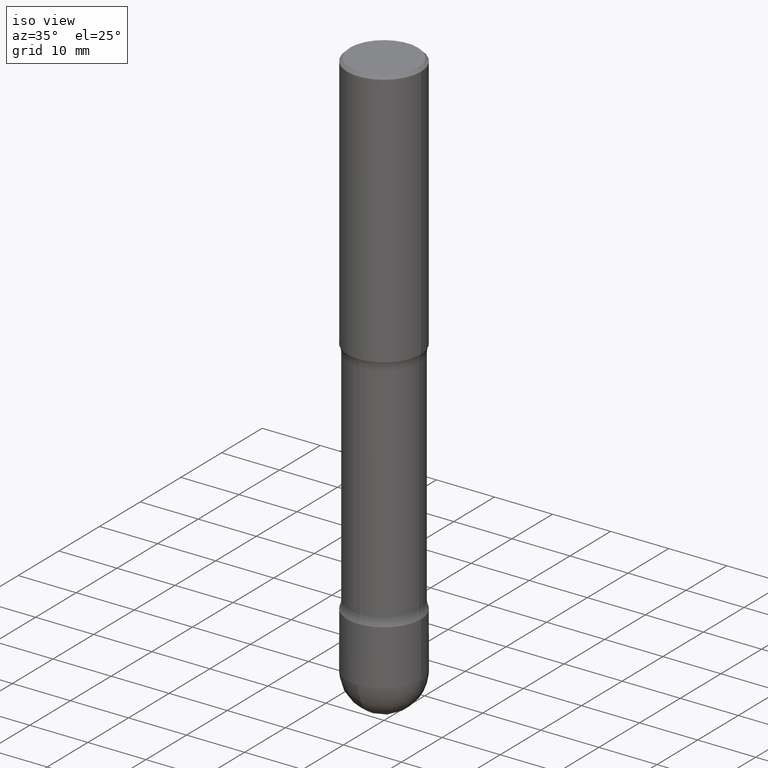
[diagram: clean part render]
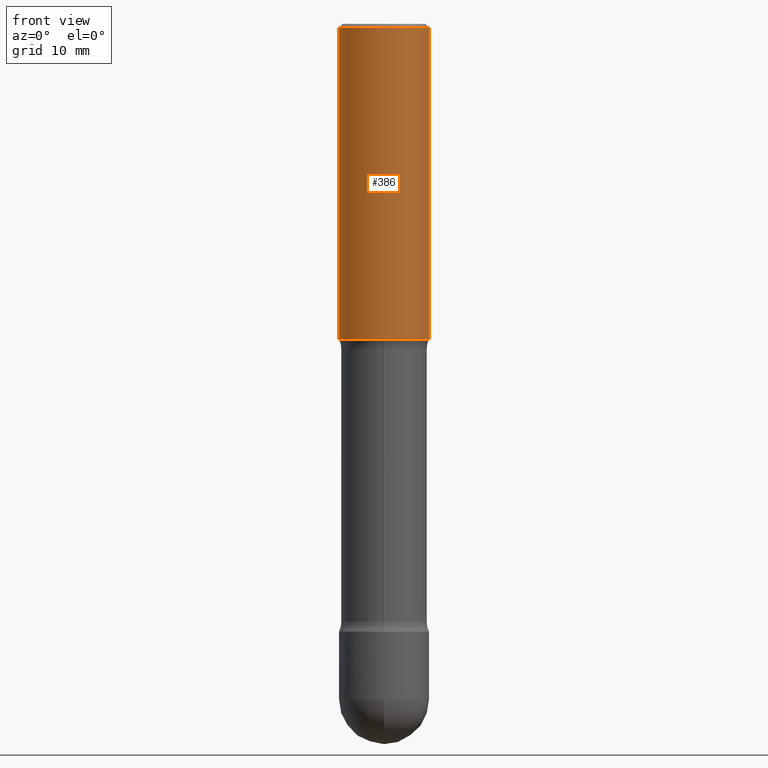
[diagram: tour spotlight — one face highlighted and labeled with its STEP entity id]
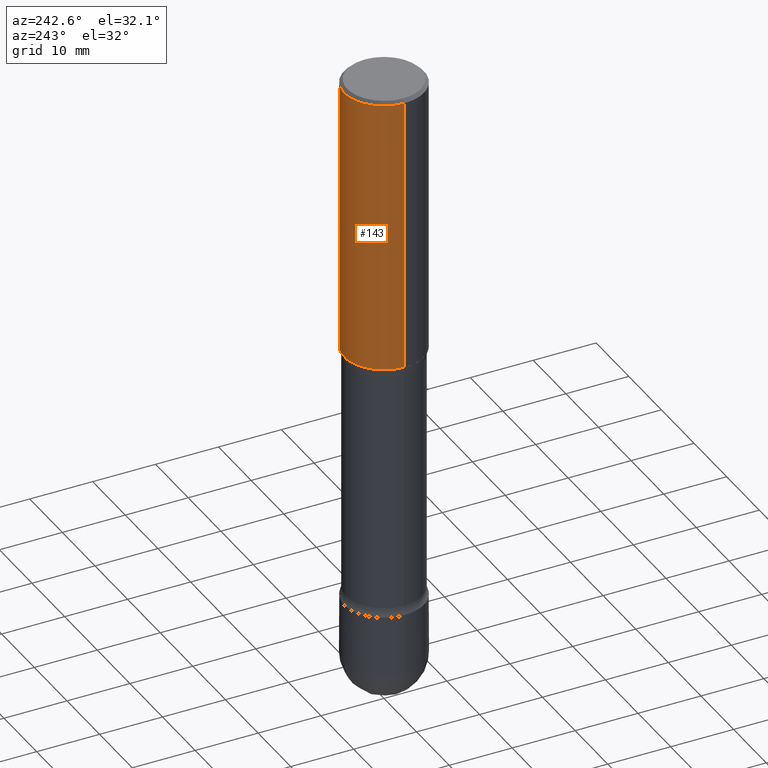
[diagram: tour spotlight — one face highlighted and labeled with its STEP entity id]
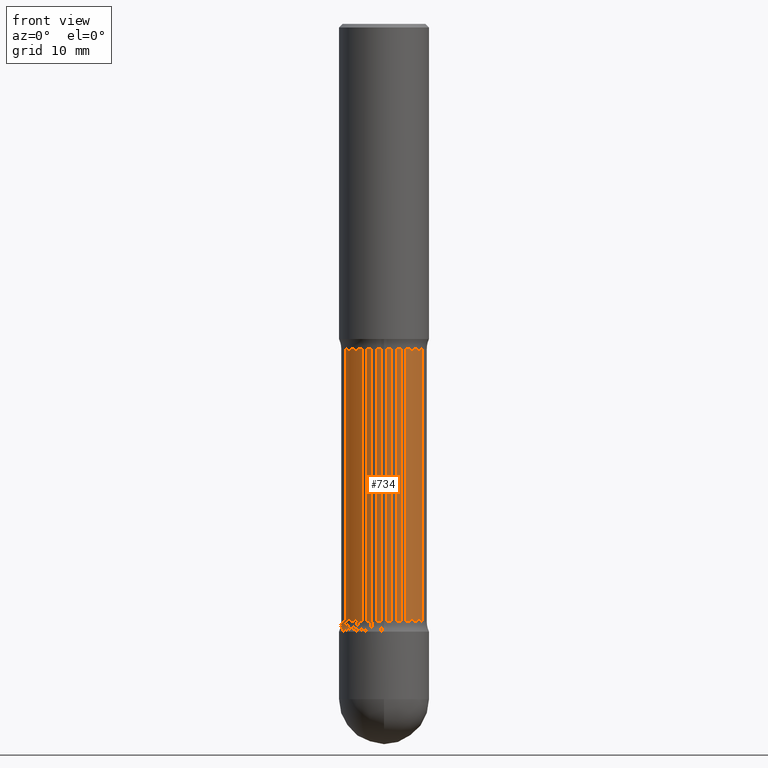
[diagram: tour spotlight — one face highlighted and labeled with its STEP entity id]
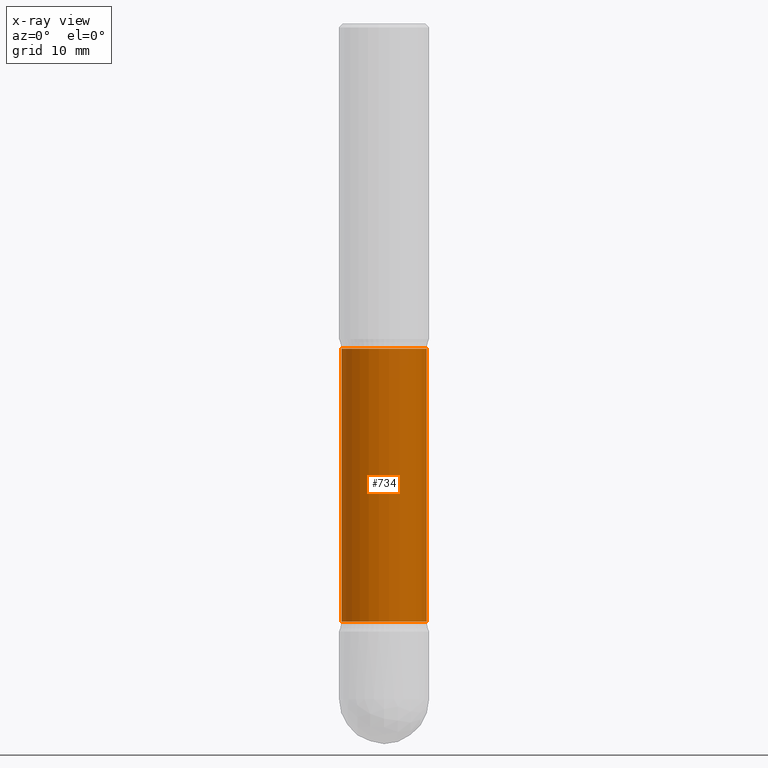
[diagram: x-ray of the same camera — body ghosted, this tour face saturated]
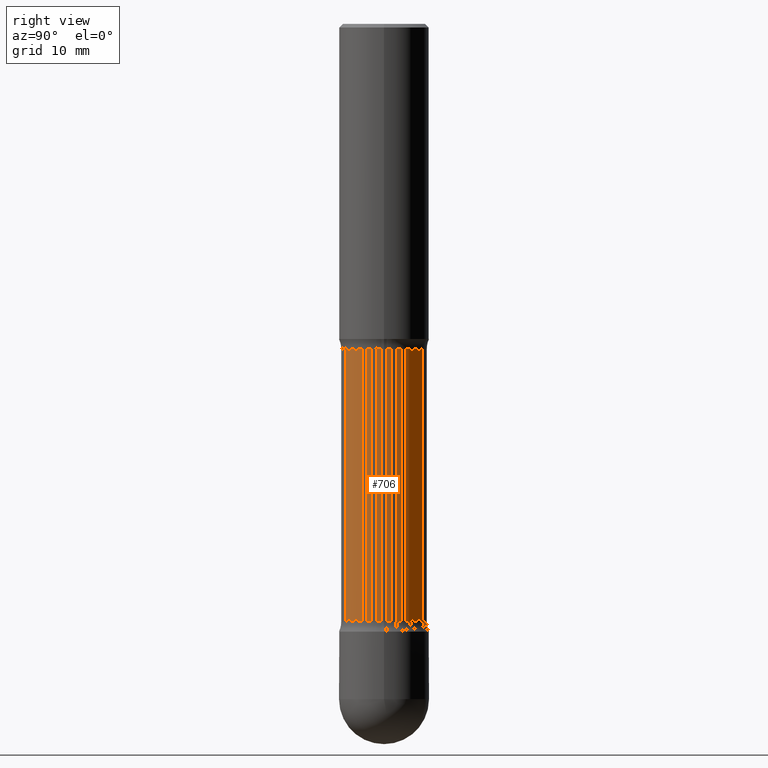
[diagram: tour spotlight — one face highlighted and labeled with its STEP entity id]
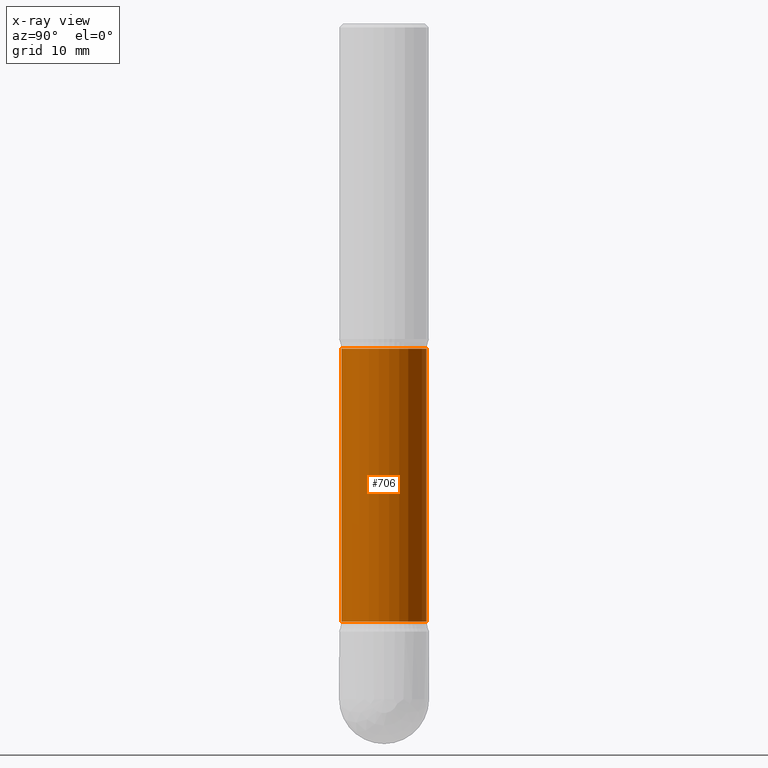
[diagram: x-ray of the same camera — body ghosted, this tour face saturated]
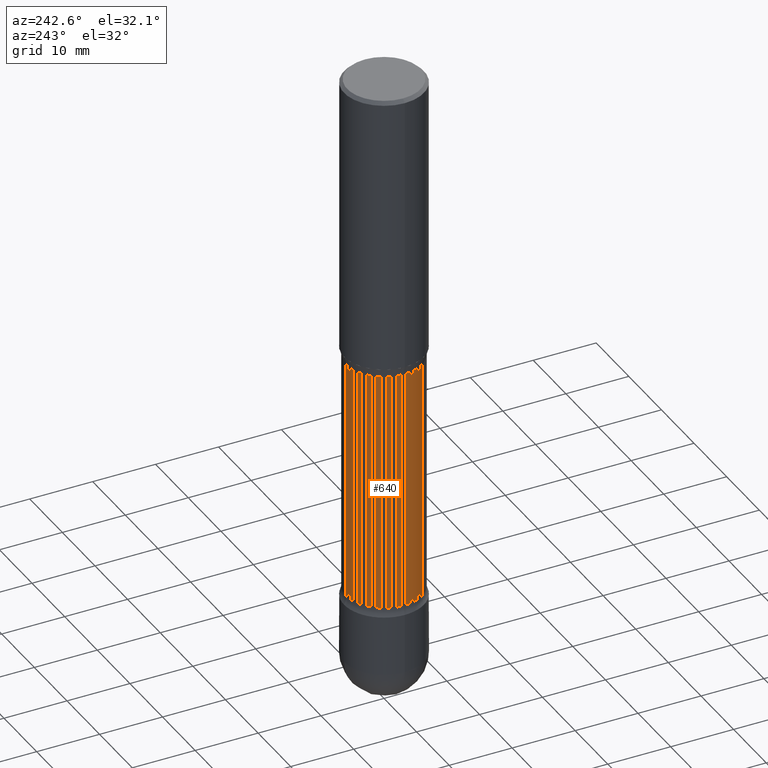
[diagram: tour spotlight — one face highlighted and labeled with its STEP entity id]
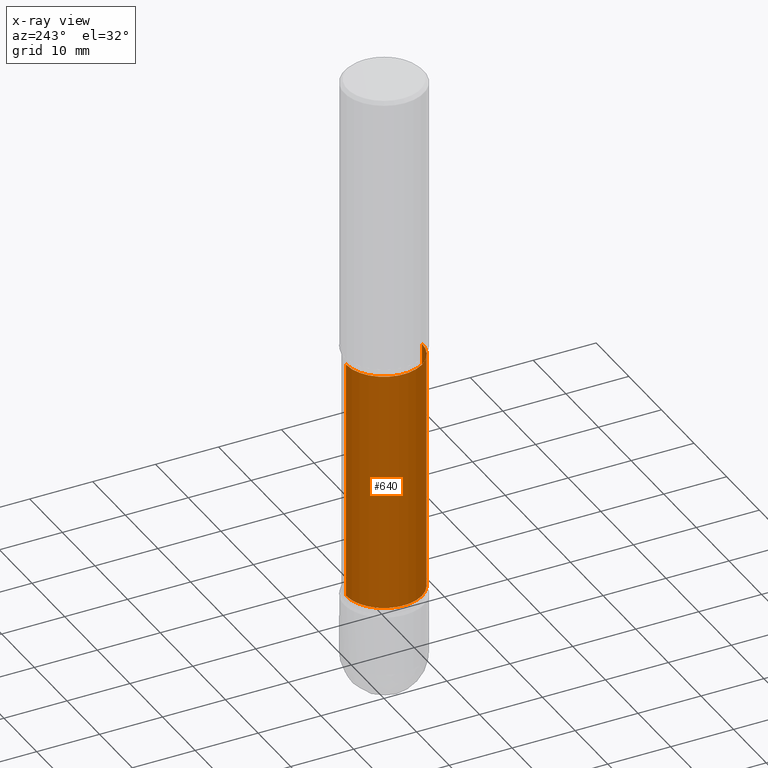
[diagram: x-ray of the same camera — body ghosted, this tour face saturated]
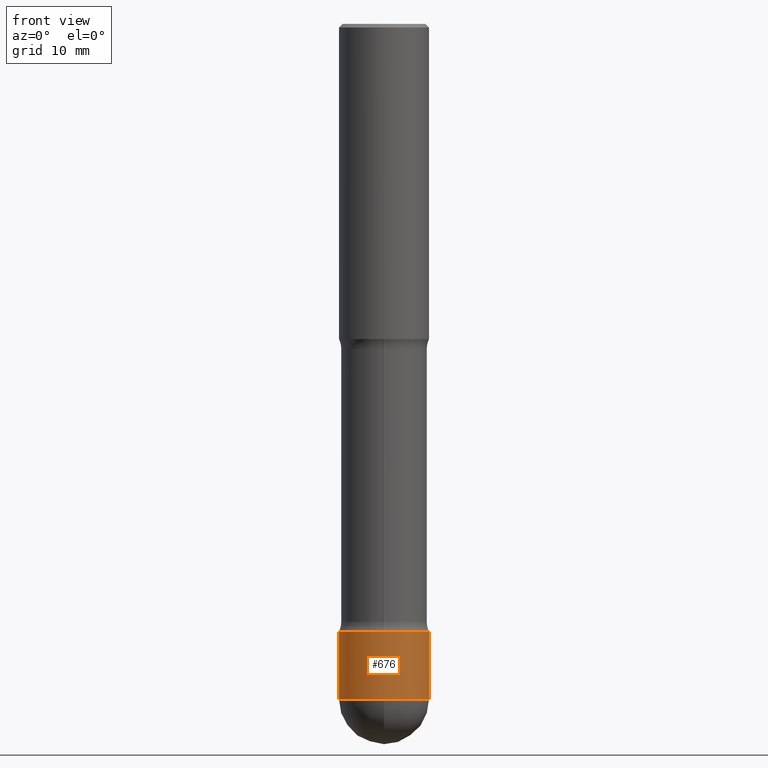
[diagram: tour spotlight — one face highlighted and labeled with its STEP entity id]
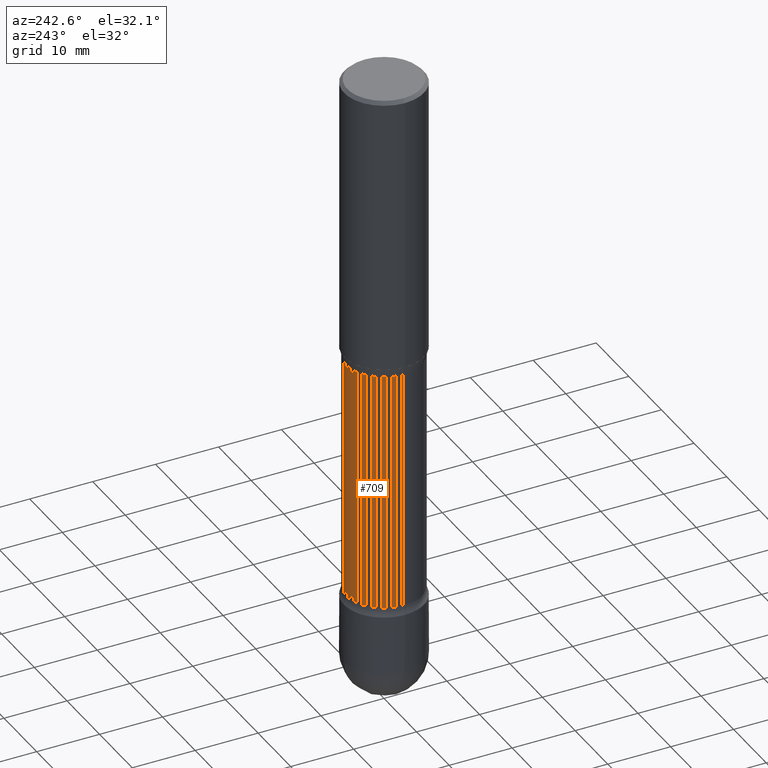
[diagram: tour spotlight — one face highlighted and labeled with its STEP entity id]
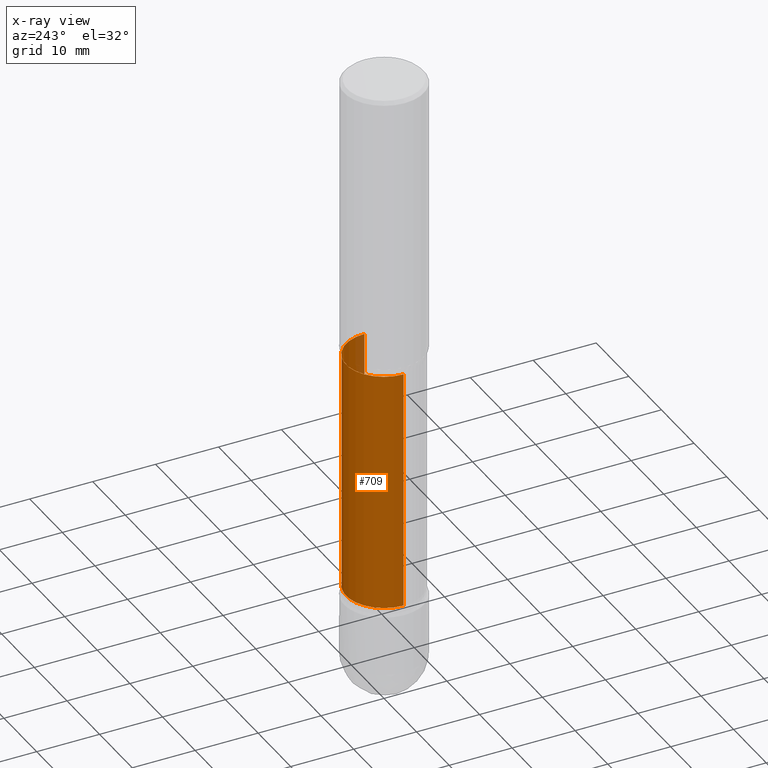
[diagram: x-ray of the same camera — body ghosted, this tour face saturated]
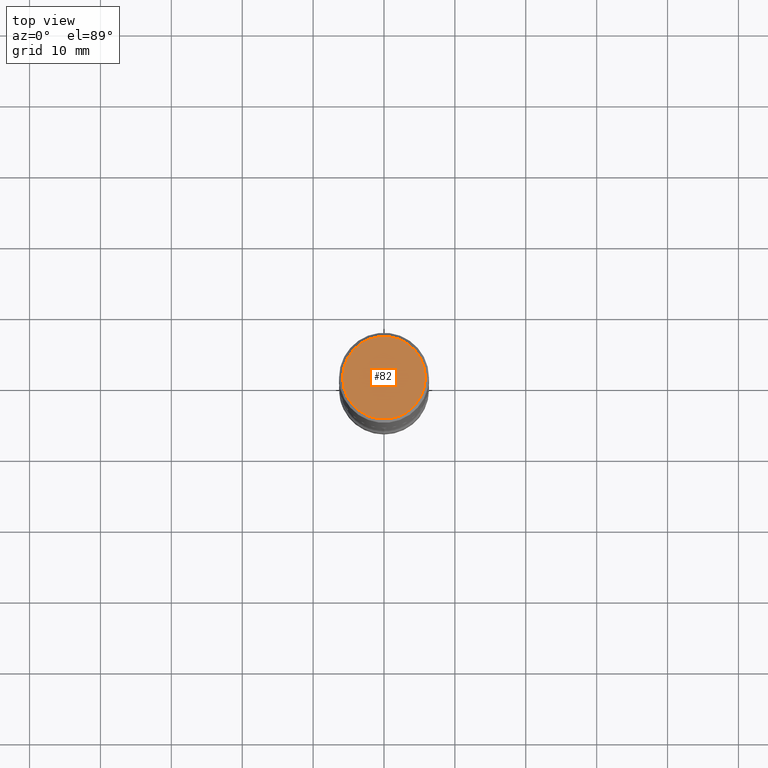
[diagram: tour spotlight — one face highlighted and labeled with its STEP entity id]
A machine part: a face-by-face anatomy tour. The part has 27 B-rep faces; the first image is the clean iso view, then the 8 largest visible faces are spotlighted one at a time (largest first), each with its STEP entity span.

Face 1 — front view, entity #386. In plain terms, the highlighted cylindrical surface (partial cylindrical patch) has radius 6.35 mm, axis along (-0, 0, 1).
Definition (entity closure, byte-faithful):
#74 = EDGE_LOOP ( 'NONE', ( #476, #654, #793, #844 ) ) ;
#84 = EDGE_CURVE ( 'NONE', #464, #369, #563, .T. ) ;
#92 = DIRECTION ( 'NONE',  ( -2.445468806185136597E-29, 3.491481338843145583E-15, 1.000000000000000000 ) ) ;
#114 = AXIS2_PLACEMENT_3D ( 'NONE', #317, #594, #251 ) ;
#115 = LINE ( 'NONE', #452, #261 ) ;
#136 = FACE_OUTER_BOUND ( 'NONE', #74, .T. ) ;
#145 = DIRECTION ( 'NONE',  ( 1.000000000000000000, -6.982962677686267499E-15, 0.000000000000000000 ) ) ;
#176 = VECTOR ( 'NONE', #478, 39.37007874015748143 ) ;
#196 = CARTESIAN_POINT ( 'NONE',  ( 0.2499999999999996114, -1.784954126219743428E-15, -0.02000000000000005246 ) ) ;
#202 = CIRCLE ( 'NONE', #114, 0.2500000000000000000 ) ;
#206 = DIRECTION ( 'NONE',  ( -2.445468806185136597E-29, 3.491481338843145583E-15, 1.000000000000000000 ) ) ;
#251 = DIRECTION ( 'NONE',  ( 1.000000000000000000, -6.982962677686266711E-15, 0.000000000000000000 ) ) ;
#261 = VECTOR ( 'NONE', #655, 39.37007874015748143 ) ;
#281 = CARTESIAN_POINT ( 'NONE',  ( 0.000000000000000000, 0.000000000000000000, 0.000000000000000000 ) ) ;
#303 = CARTESIAN_POINT ( 'NONE',  ( -0.2499999999999996114, 1.675911042644701013E-15, -0.02000000000000005246 ) ) ;
#317 = CARTESIAN_POINT ( 'NONE',  ( 4.279570410823988484E-29, -6.110092342975504671E-15, -1.750000000000000000 ) ) ;
#340 = EDGE_CURVE ( 'NONE', #511, #464, #343, .T. ) ;
#341 = CARTESIAN_POINT ( 'NONE',  ( 4.890937612370285420E-31, -6.982962677686308865E-17, -0.02000000000000005246 ) ) ;
#343 = LINE ( 'NONE', #542, #176 ) ;
#369 = VERTEX_POINT ( 'NONE', #196 ) ;
#386 = ADVANCED_FACE ( 'NONE', ( #136 ), #748, .T. ) ;
#452 = CARTESIAN_POINT ( 'NONE',  ( 0.2499999999999998057, -1.745740669421565297E-15, 1.219044193948982967E-29 ) ) ;
#464 = VERTEX_POINT ( 'NONE', #303 ) ;
#476 = ORIENTED_EDGE ( 'NONE', *, *, #340, .F. ) ;
#478 = DIRECTION ( 'NONE',  ( -2.445468806185136877E-29, 3.491481338843145188E-15, 1.000000000000000000 ) ) ;
#511 = VERTEX_POINT ( 'NONE', #720 ) ;
#542 = CARTESIAN_POINT ( 'NONE',  ( -0.2499999999999998057, 1.776356839400249084E-15, -1.229733772563725465E-29 ) ) ;
#563 = CIRCLE ( 'NONE', #786, 0.2499999999999996114 ) ;
#569 = VERTEX_POINT ( 'NONE', #802 ) ;
#594 = DIRECTION ( 'NONE',  ( -2.445468806185136597E-29, 3.491481338843145583E-15, 1.000000000000000000 ) ) ;
#612 = DIRECTION ( 'NONE',  ( 1.000000000000000000, -6.982962677686266711E-15, 4.876176775795935793E-29 ) ) ;
#654 = ORIENTED_EDGE ( 'NONE', *, *, #795, .T. ) ;
#655 = DIRECTION ( 'NONE',  ( -2.445468806185136877E-29, 3.491481338843145188E-15, 1.000000000000000000 ) ) ;
#720 = CARTESIAN_POINT ( 'NONE',  ( -0.2500000000000000555, -1.313604145475930562E-15, -1.750000000000000000 ) ) ;
#739 = AXIS2_PLACEMENT_3D ( 'NONE', #281, #206, #612 ) ;
#748 = CYLINDRICAL_SURFACE ( 'NONE', #739, 0.2499999999999998057 ) ;
#786 = AXIS2_PLACEMENT_3D ( 'NONE', #341, #92, #145 ) ;
#793 = ORIENTED_EDGE ( 'NONE', *, *, #803, .T. ) ;
#795 = EDGE_CURVE ( 'NONE', #511, #569, #202, .T. ) ;
#802 = CARTESIAN_POINT ( 'NONE',  ( 0.2500000000000000000, -7.855833012397070560E-15, -1.750000000000000000 ) ) ;
#803 = EDGE_CURVE ( 'NONE', #569, #369, #115, .T. ) ;
#844 = ORIENTED_EDGE ( 'NONE', *, *, #84, .F. ) ;

Face 2 — auxiliary view, entity #143. In plain terms, the highlighted cylindrical surface (partial cylindrical patch) has radius 6.35 mm, axis along (-0, 0, 1).
Definition (entity closure, byte-faithful):
#77 = DIRECTION ( 'NONE',  ( 1.000000000000000000, -6.982962677686266711E-15, 0.000000000000000000 ) ) ;
#86 = CIRCLE ( 'NONE', #231, 0.2499999999999996114 ) ;
#102 = AXIS2_PLACEMENT_3D ( 'NONE', #277, #687, #549 ) ;
#115 = LINE ( 'NONE', #452, #261 ) ;
#143 = ADVANCED_FACE ( 'NONE', ( #543 ), #424, .T. ) ;
#166 = ORIENTED_EDGE ( 'NONE', *, *, #340, .T. ) ;
#176 = VECTOR ( 'NONE', #478, 39.37007874015748143 ) ;
#196 = CARTESIAN_POINT ( 'NONE',  ( 0.2499999999999996114, -1.784954126219743428E-15, -0.02000000000000005246 ) ) ;
#214 = CIRCLE ( 'NONE', #587, 0.2500000000000000000 ) ;
#231 = AXIS2_PLACEMENT_3D ( 'NONE', #298, #492, #570 ) ;
#242 = EDGE_LOOP ( 'NONE', ( #331, #166, #664, #815 ) ) ;
#261 = VECTOR ( 'NONE', #655, 39.37007874015748143 ) ;
#265 = CARTESIAN_POINT ( 'NONE',  ( 4.279570410823988484E-29, -6.110092342975504671E-15, -1.750000000000000000 ) ) ;
#277 = CARTESIAN_POINT ( 'NONE',  ( 0.000000000000000000, 0.000000000000000000, 0.000000000000000000 ) ) ;
#298 = CARTESIAN_POINT ( 'NONE',  ( 4.890937612370285420E-31, -6.982962677686308865E-17, -0.02000000000000005246 ) ) ;
#303 = CARTESIAN_POINT ( 'NONE',  ( -0.2499999999999996114, 1.675911042644701013E-15, -0.02000000000000005246 ) ) ;
#331 = ORIENTED_EDGE ( 'NONE', *, *, #395, .T. ) ;
#340 = EDGE_CURVE ( 'NONE', #511, #464, #343, .T. ) ;
#343 = LINE ( 'NONE', #542, #176 ) ;
#369 = VERTEX_POINT ( 'NONE', #196 ) ;
#395 = EDGE_CURVE ( 'NONE', #569, #511, #214, .T. ) ;
#424 = CYLINDRICAL_SURFACE ( 'NONE', #102, 0.2499999999999998057 ) ;
#452 = CARTESIAN_POINT ( 'NONE',  ( 0.2499999999999998057, -1.745740669421565297E-15, 1.219044193948982967E-29 ) ) ;
#464 = VERTEX_POINT ( 'NONE', #303 ) ;
#470 = DIRECTION ( 'NONE',  ( -2.445468806185136597E-29, 3.491481338843145583E-15, 1.000000000000000000 ) ) ;
#478 = DIRECTION ( 'NONE',  ( -2.445468806185136877E-29, 3.491481338843145188E-15, 1.000000000000000000 ) ) ;
#492 = DIRECTION ( 'NONE',  ( -2.445468806185136597E-29, 3.491481338843145583E-15, 1.000000000000000000 ) ) ;
#511 = VERTEX_POINT ( 'NONE', #720 ) ;
#542 = CARTESIAN_POINT ( 'NONE',  ( -0.2499999999999998057, 1.776356839400249084E-15, -1.229733772563725465E-29 ) ) ;
#543 = FACE_OUTER_BOUND ( 'NONE', #242, .T. ) ;
#549 = DIRECTION ( 'NONE',  ( 1.000000000000000000, -6.982962677686266711E-15, 4.876176775795935793E-29 ) ) ;
#569 = VERTEX_POINT ( 'NONE', #802 ) ;
#570 = DIRECTION ( 'NONE',  ( 1.000000000000000000, -6.982962677686267499E-15, 0.000000000000000000 ) ) ;
#587 = AXIS2_PLACEMENT_3D ( 'NONE', #265, #470, #77 ) ;
#655 = DIRECTION ( 'NONE',  ( -2.445468806185136877E-29, 3.491481338843145188E-15, 1.000000000000000000 ) ) ;
#664 = ORIENTED_EDGE ( 'NONE', *, *, #717, .F. ) ;
#687 = DIRECTION ( 'NONE',  ( -2.445468806185136597E-29, 3.491481338843145583E-15, 1.000000000000000000 ) ) ;
#717 = EDGE_CURVE ( 'NONE', #369, #464, #86, .T. ) ;
#720 = CARTESIAN_POINT ( 'NONE',  ( -0.2500000000000000555, -1.313604145475930562E-15, -1.750000000000000000 ) ) ;
#802 = CARTESIAN_POINT ( 'NONE',  ( 0.2500000000000000000, -7.855833012397070560E-15, -1.750000000000000000 ) ) ;
#803 = EDGE_CURVE ( 'NONE', #569, #369, #115, .T. ) ;
#815 = ORIENTED_EDGE ( 'NONE', *, *, #803, .F. ) ;

Face 3 — front view, entity #734. An x-ray twin of the same camera follows (body ghosted, this face saturated) — the face is partly hidden behind the body. In plain terms, the highlighted cylindrical surface (partial cylindrical patch) has radius 6.0325 mm, axis along (-0, 0, 1).
Definition (entity closure, byte-faithful):
#1 = ORIENTED_EDGE ( 'NONE', *, *, #7, .T. ) ;
#3 = VECTOR ( 'NONE', #408, 39.37007874015748143 ) ;
#7 = EDGE_CURVE ( 'NONE', #607, #129, #505, .T. ) ;
#47 = CIRCLE ( 'NONE', #73, 0.2374999999999998501 ) ;
#49 = EDGE_LOOP ( 'NONE', ( #439, #1, #529, #593 ) ) ;
#64 = VERTEX_POINT ( 'NONE', #288 ) ;
#73 = AXIS2_PLACEMENT_3D ( 'NONE', #560, #163, #431 ) ;
#129 = VERTEX_POINT ( 'NONE', #621 ) ;
#163 = DIRECTION ( 'NONE',  ( -2.445468806185136597E-29, 3.491481338843145583E-15, 1.000000000000000000 ) ) ;
#172 = AXIS2_PLACEMENT_3D ( 'NONE', #320, #524, #197 ) ;
#197 = DIRECTION ( 'NONE',  ( 1.000000000000000000, -6.982962677686262766E-15, 0.000000000000000000 ) ) ;
#210 = CARTESIAN_POINT ( 'NONE',  ( 0.2375000000000000167, -7.768545978925992226E-15, -1.750000000000000000 ) ) ;
#284 = CARTESIAN_POINT ( 'NONE',  ( 4.279570410823988484E-29, -6.110092342975504671E-15, -1.750000000000000000 ) ) ;
#288 = CARTESIAN_POINT ( 'NONE',  ( -0.2374999999999998501, -4.473263264055732552E-15, -1.804486236794258680 ) ) ;
#290 = FACE_OUTER_BOUND ( 'NONE', #49, .T. ) ;
#320 = CARTESIAN_POINT ( 'NONE',  ( 8.120212828428064270E-29, -1.159351183960467950E-14, -3.320513763205743096 ) ) ;
#333 = LINE ( 'NONE', #472, #539 ) ;
#384 = EDGE_CURVE ( 'NONE', #129, #507, #817, .T. ) ;
#408 = DIRECTION ( 'NONE',  ( -2.445468806185136877E-29, 3.491481338843145188E-15, 1.000000000000000000 ) ) ;
#431 = DIRECTION ( 'NONE',  ( 1.000000000000000000, -6.982962677686265133E-15, 0.000000000000000000 ) ) ;
#439 = ORIENTED_EDGE ( 'NONE', *, *, #613, .F. ) ;
#472 = CARTESIAN_POINT ( 'NONE',  ( -0.2375000000000000167, -4.422553345545266414E-15, -1.750000000000000000 ) ) ;
#505 = CIRCLE ( 'NONE', #172, 0.2375000000000002109 ) ;
#507 = VERTEX_POINT ( 'NONE', #596 ) ;
#524 = DIRECTION ( 'NONE',  ( -2.445468806185136597E-29, 3.491481338843145583E-15, 1.000000000000000000 ) ) ;
#529 = ORIENTED_EDGE ( 'NONE', *, *, #384, .T. ) ;
#539 = VECTOR ( 'NONE', #611, 39.37007874015748143 ) ;
#560 = CARTESIAN_POINT ( 'NONE',  ( 4.412814803270765833E-29, -6.300330021966448365E-15, -1.804486236794258680 ) ) ;
#572 = AXIS2_PLACEMENT_3D ( 'NONE', #284, #626, #827 ) ;
#577 = CYLINDRICAL_SURFACE ( 'NONE', #572, 0.2375000000000000167 ) ;
#593 = ORIENTED_EDGE ( 'NONE', *, *, #688, .F. ) ;
#596 = CARTESIAN_POINT ( 'NONE',  ( 0.2374999999999998501, -7.958783657916935131E-15, -1.804486236794258680 ) ) ;
#607 = VERTEX_POINT ( 'NONE', #744 ) ;
#611 = DIRECTION ( 'NONE',  ( -2.445468806185136877E-29, 3.491481338843145188E-15, 1.000000000000000000 ) ) ;
#613 = EDGE_CURVE ( 'NONE', #607, #64, #333, .T. ) ;
#621 = CARTESIAN_POINT ( 'NONE',  ( 0.2375000000000002109, -1.325196547555516784E-14, -3.320513763205743096 ) ) ;
#626 = DIRECTION ( 'NONE',  ( -2.445468806185136597E-29, 3.491481338843145583E-15, 1.000000000000000000 ) ) ;
#688 = EDGE_CURVE ( 'NONE', #64, #507, #47, .T. ) ;
#734 = ADVANCED_FACE ( 'NONE', ( #290 ), #577, .T. ) ;
#744 = CARTESIAN_POINT ( 'NONE',  ( -0.2375000000000002109, -9.956682760684905015E-15, -3.320513763205743096 ) ) ;
#817 = LINE ( 'NONE', #210, #3 ) ;
#827 = DIRECTION ( 'NONE',  ( 1.000000000000000000, -6.982962677686264344E-15, 0.000000000000000000 ) ) ;

Face 4 — right view, entity #706. An x-ray twin of the same camera follows (body ghosted, this face saturated) — the face is partly hidden behind the body. In plain terms, the highlighted cylindrical surface (partial cylindrical patch) has radius 6.0325 mm, axis along (0, -0, -1).
Definition (entity closure, byte-faithful):
#48 = CARTESIAN_POINT ( 'NONE',  ( -1.672246386956727041E-15, -0.2375000000000117295, -3.320513763205742208 ) ) ;
#66 = EDGE_CURVE ( 'NONE', #435, #454, #860, .T. ) ;
#103 = CARTESIAN_POINT ( 'NONE',  ( 9.408979540361261641E-29, -1.449993319930801510E-14, -4.000000000000000000 ) ) ;
#121 = AXIS2_PLACEMENT_3D ( 'NONE', #746, #475, #614 ) ;
#155 = DIRECTION ( 'NONE',  ( 1.848835711178280162E-29, -4.345893889139841245E-15, -1.000000000000000000 ) ) ;
#157 = CARTESIAN_POINT ( 'NONE',  ( 5.349835290563072716E-29, -4.958463352269768875E-15, -1.804486236794258458 ) ) ;
#232 = EDGE_CURVE ( 'NONE', #646, #454, #679, .T. ) ;
#234 = DIRECTION ( 'NONE',  ( 6.982962677686265922E-15, 1.000000000000000000, -4.601007147224051243E-15 ) ) ;
#235 = VECTOR ( 'NONE', #155, 39.37007874015748143 ) ;
#273 = CARTESIAN_POINT ( 'NONE',  ( 1.658453635950531139E-15, 0.2374999999999935774, -1.804486236794259568 ) ) ;
#276 = DIRECTION ( 'NONE',  ( 1.848835711178280162E-29, -4.345893889139841245E-15, -1.000000000000000000 ) ) ;
#305 = EDGE_CURVE ( 'NONE', #660, #435, #495, .T. ) ;
#315 = AXIS2_PLACEMENT_3D ( 'NONE', #103, #422, #629 ) ;
#328 = ORIENTED_EDGE ( 'NONE', *, *, #66, .F. ) ;
#334 = CARTESIAN_POINT ( 'NONE',  ( 1.658453635950577879E-15, 0.2374999999999848344, -4.000000000000000888 ) ) ;
#349 = FACE_OUTER_BOUND ( 'NONE', #606, .T. ) ;
#405 = CARTESIAN_POINT ( 'NONE',  ( -1.629368274470639823E-15, -0.2375000000000138667, -3.999999999999998668 ) ) ;
#422 = DIRECTION ( 'NONE',  ( 1.848835711178280162E-29, -4.345893889139841245E-15, -1.000000000000000000 ) ) ;
#435 = VERTEX_POINT ( 'NONE', #738 ) ;
#454 = VERTEX_POINT ( 'NONE', #48 ) ;
#475 = DIRECTION ( 'NONE',  ( 1.848835711178280162E-29, -4.345893889139841245E-15, -1.000000000000000000 ) ) ;
#484 = CIRCLE ( 'NONE', #588, 0.2374999999999985179 ) ;
#495 = LINE ( 'NONE', #334, #807 ) ;
#576 = ORIENTED_EDGE ( 'NONE', *, *, #305, .F. ) ;
#588 = AXIS2_PLACEMENT_3D ( 'NONE', #157, #824, #234 ) ;
#604 = CARTESIAN_POINT ( 'NONE',  ( -1.672246386956748735E-15, -0.2375000000000034861, -1.804486236794257348 ) ) ;
#606 = EDGE_LOOP ( 'NONE', ( #703, #669, #328, #576 ) ) ;
#614 = DIRECTION ( 'NONE',  ( 6.982962677686265922E-15, 1.000000000000000000, -4.601007147224018900E-15 ) ) ;
#629 = DIRECTION ( 'NONE',  ( 6.982962677686265922E-15, 1.000000000000000000, -4.601007147224034677E-15 ) ) ;
#646 = VERTEX_POINT ( 'NONE', #604 ) ;
#660 = VERTEX_POINT ( 'NONE', #273 ) ;
#669 = ORIENTED_EDGE ( 'NONE', *, *, #232, .T. ) ;
#679 = LINE ( 'NONE', #405, #235 ) ;
#703 = ORIENTED_EDGE ( 'NONE', *, *, #764, .T. ) ;
#706 = ADVANCED_FACE ( 'NONE', ( #349 ), #765, .T. ) ;
#738 = CARTESIAN_POINT ( 'NONE',  ( 1.658453635950570780E-15, 0.2374999999999886091, -3.320513763205744429 ) ) ;
#746 = CARTESIAN_POINT ( 'NONE',  ( 8.152721120521898288E-29, -1.154695811506922859E-14, -3.320513763205743096 ) ) ;
#764 = EDGE_CURVE ( 'NONE', #660, #646, #484, .T. ) ;
#765 = CYLINDRICAL_SURFACE ( 'NONE', #315, 0.2374999999999993505 ) ;
#807 = VECTOR ( 'NONE', #276, 39.37007874015748143 ) ;
#824 = DIRECTION ( 'NONE',  ( 1.848835711178280162E-29, -4.345893889139841245E-15, -1.000000000000000000 ) ) ;
#860 = CIRCLE ( 'NONE', #121, 0.2375000000000001554 ) ;

Face 5 — auxiliary view, entity #640. An x-ray twin of the same camera follows (body ghosted, this face saturated) — the face is partly hidden behind the body. In plain terms, the highlighted cylindrical surface (partial cylindrical patch) has radius 6.0325 mm, axis along (0, -0, -1).
Definition (entity closure, byte-faithful):
#15 = CARTESIAN_POINT ( 'NONE',  ( 9.408979540361261641E-29, -1.449993319930801510E-14, -4.000000000000000000 ) ) ;
#21 = EDGE_CURVE ( 'NONE', #454, #435, #279, .T. ) ;
#23 = EDGE_CURVE ( 'NONE', #646, #660, #469, .T. ) ;
#48 = CARTESIAN_POINT ( 'NONE',  ( -1.672246386956727041E-15, -0.2375000000000117295, -3.320513763205742208 ) ) ;
#130 = ORIENTED_EDGE ( 'NONE', *, *, #23, .T. ) ;
#133 = DIRECTION ( 'NONE',  ( 1.848835711178280162E-29, -4.345893889139841245E-15, -1.000000000000000000 ) ) ;
#138 = DIRECTION ( 'NONE',  ( 6.982962677686265922E-15, 1.000000000000000000, -4.601007147224051243E-15 ) ) ;
#155 = DIRECTION ( 'NONE',  ( 1.848835711178280162E-29, -4.345893889139841245E-15, -1.000000000000000000 ) ) ;
#191 = DIRECTION ( 'NONE',  ( 6.982962677686265922E-15, 1.000000000000000000, -4.601007147224018900E-15 ) ) ;
#215 = AXIS2_PLACEMENT_3D ( 'NONE', #740, #392, #138 ) ;
#232 = EDGE_CURVE ( 'NONE', #646, #454, #679, .T. ) ;
#235 = VECTOR ( 'NONE', #155, 39.37007874015748143 ) ;
#273 = CARTESIAN_POINT ( 'NONE',  ( 1.658453635950531139E-15, 0.2374999999999935774, -1.804486236794259568 ) ) ;
#276 = DIRECTION ( 'NONE',  ( 1.848835711178280162E-29, -4.345893889139841245E-15, -1.000000000000000000 ) ) ;
#279 = CIRCLE ( 'NONE', #849, 0.2375000000000001554 ) ;
#304 = ORIENTED_EDGE ( 'NONE', *, *, #21, .F. ) ;
#305 = EDGE_CURVE ( 'NONE', #660, #435, #495, .T. ) ;
#308 = ORIENTED_EDGE ( 'NONE', *, *, #305, .T. ) ;
#334 = CARTESIAN_POINT ( 'NONE',  ( 1.658453635950577879E-15, 0.2374999999999848344, -4.000000000000000888 ) ) ;
#380 = EDGE_LOOP ( 'NONE', ( #533, #130, #308, #304 ) ) ;
#392 = DIRECTION ( 'NONE',  ( 1.848835711178280162E-29, -4.345893889139841245E-15, -1.000000000000000000 ) ) ;
#405 = CARTESIAN_POINT ( 'NONE',  ( -1.629368274470639823E-15, -0.2375000000000138667, -3.999999999999998668 ) ) ;
#407 = DIRECTION ( 'NONE',  ( 6.982962677686265922E-15, 1.000000000000000000, -4.601007147224034677E-15 ) ) ;
#435 = VERTEX_POINT ( 'NONE', #738 ) ;
#454 = VERTEX_POINT ( 'NONE', #48 ) ;
#462 = CYLINDRICAL_SURFACE ( 'NONE', #763, 0.2374999999999993505 ) ;
#467 = CARTESIAN_POINT ( 'NONE',  ( 8.152721120521898288E-29, -1.154695811506922859E-14, -3.320513763205743096 ) ) ;
#469 = CIRCLE ( 'NONE', #215, 0.2374999999999985179 ) ;
#495 = LINE ( 'NONE', #334, #807 ) ;
#533 = ORIENTED_EDGE ( 'NONE', *, *, #232, .F. ) ;
#604 = CARTESIAN_POINT ( 'NONE',  ( -1.672246386956748735E-15, -0.2375000000000034861, -1.804486236794257348 ) ) ;
#640 = ADVANCED_FACE ( 'NONE', ( #673 ), #462, .T. ) ;
#646 = VERTEX_POINT ( 'NONE', #604 ) ;
#660 = VERTEX_POINT ( 'NONE', #273 ) ;
#673 = FACE_OUTER_BOUND ( 'NONE', #380, .T. ) ;
#679 = LINE ( 'NONE', #405, #235 ) ;
#738 = CARTESIAN_POINT ( 'NONE',  ( 1.658453635950570780E-15, 0.2374999999999886091, -3.320513763205744429 ) ) ;
#740 = CARTESIAN_POINT ( 'NONE',  ( 5.349835290563072716E-29, -4.958463352269768875E-15, -1.804486236794258458 ) ) ;
#763 = AXIS2_PLACEMENT_3D ( 'NONE', #15, #133, #407 ) ;
#798 = DIRECTION ( 'NONE',  ( 1.848835711178280162E-29, -4.345893889139841245E-15, -1.000000000000000000 ) ) ;
#807 = VECTOR ( 'NONE', #276, 39.37007874015748143 ) ;
#849 = AXIS2_PLACEMENT_3D ( 'NONE', #467, #798, #191 ) ;

Face 6 — front view, entity #676. In plain terms, the highlighted cylindrical surface (partial cylindrical patch) has radius 6.35 mm, axis along (-0, 0, 1).
Definition (entity closure, byte-faithful):
#20 = CARTESIAN_POINT ( 'NONE',  ( 0.2499999999999993061, -1.418414293905026949E-14, -3.749999999999999556 ) ) ;
#93 = DIRECTION ( 'NONE',  ( -2.445468806185136597E-29, 3.491481338843145583E-15, 1.000000000000000000 ) ) ;
#108 = ORIENTED_EDGE ( 'NONE', *, *, #527, .F. ) ;
#111 = AXIS2_PLACEMENT_3D ( 'NONE', #711, #829, #434 ) ;
#131 = DIRECTION ( 'NONE',  ( -2.445468806185136877E-29, 3.491481338843145188E-15, 1.000000000000000000 ) ) ;
#149 = VECTOR ( 'NONE', #131, 39.37007874015748143 ) ;
#164 = DIRECTION ( 'NONE',  ( 1.000000000000000000, -6.982962677686265133E-15, 0.000000000000000000 ) ) ;
#208 = VERTEX_POINT ( 'NONE', #487 ) ;
#246 = CARTESIAN_POINT ( 'NONE',  ( 0.2499999999999993616, -1.745740669421562142E-15, 1.219044193948980865E-29 ) ) ;
#247 = CIRCLE ( 'NONE', #601, 0.2499999999999993061 ) ;
#256 = VERTEX_POINT ( 'NONE', #300 ) ;
#264 = CYLINDRICAL_SURFACE ( 'NONE', #398, 0.2499999999999993616 ) ;
#278 = EDGE_CURVE ( 'NONE', #723, #256, #490, .T. ) ;
#280 = FACE_OUTER_BOUND ( 'NONE', #800, .T. ) ;
#289 = AXIS2_PLACEMENT_3D ( 'NONE', #774, #438, #164 ) ;
#294 = EDGE_CURVE ( 'NONE', #834, #208, #775, .T. ) ;
#300 = CARTESIAN_POINT ( 'NONE',  ( 0.2499999999999993894, -1.352949018801717646E-14, -3.375000000000000000 ) ) ;
#302 = CARTESIAN_POINT ( 'NONE',  ( -0.2499999999999994171, -1.066204543022846181E-14, -3.375000000000000000 ) ) ;
#318 = CARTESIAN_POINT ( 'NONE',  ( -0.2499999999999993616, 1.776356839400245929E-15, -1.229733772563723222E-29 ) ) ;
#355 = EDGE_CURVE ( 'NONE', #208, #675, #247, .T. ) ;
#373 = ORIENTED_EDGE ( 'NONE', *, *, #515, .T. ) ;
#398 = AXIS2_PLACEMENT_3D ( 'NONE', #642, #93, #488 ) ;
#411 = VECTOR ( 'NONE', #861, 39.37007874015748143 ) ;
#434 = DIRECTION ( 'NONE',  ( 1.000000000000000000, -6.982962677686267499E-15, 0.000000000000000000 ) ) ;
#438 = DIRECTION ( 'NONE',  ( -2.445468806185136597E-29, 3.491481338843145583E-15, 1.000000000000000000 ) ) ;
#487 = CARTESIAN_POINT ( 'NONE',  ( -1.745740669421475564E-15, -0.2500000000000131561, -3.749999999999998668 ) ) ;
#488 = DIRECTION ( 'NONE',  ( 1.000000000000000000, -6.982962677686266711E-15, 4.876176775795935793E-29 ) ) ;
#490 = CIRCLE ( 'NONE', #289, 0.2499999999999993894 ) ;
#504 = ORIENTED_EDGE ( 'NONE', *, *, #355, .T. ) ;
#515 = EDGE_CURVE ( 'NONE', #675, #256, #733, .T. ) ;
#527 = EDGE_CURVE ( 'NONE', #834, #723, #651, .T. ) ;
#548 = CARTESIAN_POINT ( 'NONE',  ( 9.170508023194261117E-29, -1.309305502066179584E-14, -3.749999999999999556 ) ) ;
#583 = ORIENTED_EDGE ( 'NONE', *, *, #294, .T. ) ;
#601 = AXIS2_PLACEMENT_3D ( 'NONE', #548, #623, #813 ) ;
#623 = DIRECTION ( 'NONE',  ( -2.445468806185136597E-29, 3.491481338843145583E-15, 1.000000000000000000 ) ) ;
#642 = CARTESIAN_POINT ( 'NONE',  ( 0.000000000000000000, 0.000000000000000000, 0.000000000000000000 ) ) ;
#651 = LINE ( 'NONE', #318, #149 ) ;
#675 = VERTEX_POINT ( 'NONE', #20 ) ;
#676 = ADVANCED_FACE ( 'NONE', ( #280 ), #264, .T. ) ;
#711 = CARTESIAN_POINT ( 'NONE',  ( 9.170508023194261117E-29, -1.309305502066179584E-14, -3.749999999999999556 ) ) ;
#723 = VERTEX_POINT ( 'NONE', #302 ) ;
#733 = LINE ( 'NONE', #246, #411 ) ;
#774 = CARTESIAN_POINT ( 'NONE',  ( 8.253457220874836014E-29, -1.178374951859561452E-14, -3.375000000000000000 ) ) ;
#775 = CIRCLE ( 'NONE', #111, 0.2499999999999993061 ) ;
#800 = EDGE_LOOP ( 'NONE', ( #108, #583, #504, #373, #851 ) ) ;
#813 = DIRECTION ( 'NONE',  ( 1.000000000000000000, -6.982962677686267499E-15, 0.000000000000000000 ) ) ;
#829 = DIRECTION ( 'NONE',  ( -2.445468806185136597E-29, 3.491481338843145583E-15, 1.000000000000000000 ) ) ;
#834 = VERTEX_POINT ( 'NONE', #859 ) ;
#851 = ORIENTED_EDGE ( 'NONE', *, *, #278, .F. ) ;
#859 = CARTESIAN_POINT ( 'NONE',  ( -0.2499999999999993061, -1.066204543022846339E-14, -3.749999999999999556 ) ) ;
#861 = DIRECTION ( 'NONE',  ( -2.445468806185136877E-29, 3.491481338843145188E-15, 1.000000000000000000 ) ) ;

Face 7 — auxiliary view, entity #709. An x-ray twin of the same camera follows (body ghosted, this face saturated) — the face is partly hidden behind the body. In plain terms, the highlighted cylindrical surface (partial cylindrical patch) has radius 6.0325 mm, axis along (-0, 0, 1).
Definition (entity closure, byte-faithful):
#3 = VECTOR ( 'NONE', #408, 39.37007874015748143 ) ;
#11 = AXIS2_PLACEMENT_3D ( 'NONE', #770, #639, #562 ) ;
#33 = CIRCLE ( 'NONE', #177, 0.2374999999999998501 ) ;
#41 = EDGE_CURVE ( 'NONE', #507, #64, #33, .T. ) ;
#46 = FACE_OUTER_BOUND ( 'NONE', #737, .T. ) ;
#64 = VERTEX_POINT ( 'NONE', #288 ) ;
#122 = ORIENTED_EDGE ( 'NONE', *, *, #613, .T. ) ;
#124 = DIRECTION ( 'NONE',  ( -2.445468806185136597E-29, 3.491481338843145583E-15, 1.000000000000000000 ) ) ;
#129 = VERTEX_POINT ( 'NONE', #621 ) ;
#152 = DIRECTION ( 'NONE',  ( -2.445468806185136597E-29, 3.491481338843145583E-15, 1.000000000000000000 ) ) ;
#177 = AXIS2_PLACEMENT_3D ( 'NONE', #668, #124, #602 ) ;
#210 = CARTESIAN_POINT ( 'NONE',  ( 0.2375000000000000167, -7.768545978925992226E-15, -1.750000000000000000 ) ) ;
#225 = ORIENTED_EDGE ( 'NONE', *, *, #268, .T. ) ;
#268 = EDGE_CURVE ( 'NONE', #129, #607, #789, .T. ) ;
#274 = AXIS2_PLACEMENT_3D ( 'NONE', #360, #152, #637 ) ;
#288 = CARTESIAN_POINT ( 'NONE',  ( -0.2374999999999998501, -4.473263264055732552E-15, -1.804486236794258680 ) ) ;
#333 = LINE ( 'NONE', #472, #539 ) ;
#360 = CARTESIAN_POINT ( 'NONE',  ( 4.279570410823988484E-29, -6.110092342975504671E-15, -1.750000000000000000 ) ) ;
#384 = EDGE_CURVE ( 'NONE', #129, #507, #817, .T. ) ;
#408 = DIRECTION ( 'NONE',  ( -2.445468806185136877E-29, 3.491481338843145188E-15, 1.000000000000000000 ) ) ;
#472 = CARTESIAN_POINT ( 'NONE',  ( -0.2375000000000000167, -4.422553345545266414E-15, -1.750000000000000000 ) ) ;
#507 = VERTEX_POINT ( 'NONE', #596 ) ;
#539 = VECTOR ( 'NONE', #611, 39.37007874015748143 ) ;
#562 = DIRECTION ( 'NONE',  ( 1.000000000000000000, -6.982962677686262766E-15, 0.000000000000000000 ) ) ;
#568 = ORIENTED_EDGE ( 'NONE', *, *, #384, .F. ) ;
#596 = CARTESIAN_POINT ( 'NONE',  ( 0.2374999999999998501, -7.958783657916935131E-15, -1.804486236794258680 ) ) ;
#602 = DIRECTION ( 'NONE',  ( 1.000000000000000000, -6.982962677686265133E-15, 0.000000000000000000 ) ) ;
#607 = VERTEX_POINT ( 'NONE', #744 ) ;
#611 = DIRECTION ( 'NONE',  ( -2.445468806185136877E-29, 3.491481338843145188E-15, 1.000000000000000000 ) ) ;
#613 = EDGE_CURVE ( 'NONE', #607, #64, #333, .T. ) ;
#621 = CARTESIAN_POINT ( 'NONE',  ( 0.2375000000000002109, -1.325196547555516784E-14, -3.320513763205743096 ) ) ;
#637 = DIRECTION ( 'NONE',  ( 1.000000000000000000, -6.982962677686264344E-15, 0.000000000000000000 ) ) ;
#639 = DIRECTION ( 'NONE',  ( -2.445468806185136597E-29, 3.491481338843145583E-15, 1.000000000000000000 ) ) ;
#668 = CARTESIAN_POINT ( 'NONE',  ( 4.412814803270765833E-29, -6.300330021966448365E-15, -1.804486236794258680 ) ) ;
#694 = CYLINDRICAL_SURFACE ( 'NONE', #274, 0.2375000000000000167 ) ;
#709 = ADVANCED_FACE ( 'NONE', ( #46 ), #694, .T. ) ;
#737 = EDGE_LOOP ( 'NONE', ( #225, #122, #779, #568 ) ) ;
#744 = CARTESIAN_POINT ( 'NONE',  ( -0.2375000000000002109, -9.956682760684905015E-15, -3.320513763205743096 ) ) ;
#770 = CARTESIAN_POINT ( 'NONE',  ( 8.120212828428064270E-29, -1.159351183960467950E-14, -3.320513763205743096 ) ) ;
#779 = ORIENTED_EDGE ( 'NONE', *, *, #41, .F. ) ;
#789 = CIRCLE ( 'NONE', #11, 0.2375000000000002109 ) ;
#817 = LINE ( 'NONE', #210, #3 ) ;

Face 8 — top view, entity #82. In plain terms, the highlighted planar face has unit normal (0, -0, -1).
Definition (entity closure, byte-faithful):
#37 = CARTESIAN_POINT ( 'NONE',  ( 1.606081415867838306E-15, 0.2299999999999995937, -7.966379391987714714E-16 ) ) ;
#62 = CIRCLE ( 'NONE', #167, 0.2299999999999995937 ) ;
#80 = DIRECTION ( 'NONE',  ( -2.445468806185136597E-29, 3.491481338843145583E-15, 1.000000000000000000 ) ) ;
#82 = ADVANCED_FACE ( 'NONE', ( #479 ), #557, .F. ) ;
#89 = CARTESIAN_POINT ( 'NONE',  ( 0.2299999999999995937, -1.681434332853596250E-15, 1.280553747031272933E-17 ) ) ;
#118 = VERTEX_POINT ( 'NONE', #89 ) ;
#140 = DIRECTION ( 'NONE',  ( 1.000000000000000000, -6.982962677686266711E-15, 4.875813741439108182E-29 ) ) ;
#150 = DIRECTION ( 'NONE',  ( -1.000000000000000000, 6.982962677686265922E-15, -4.876176775795935793E-29 ) ) ;
#167 = AXIS2_PLACEMENT_3D ( 'NONE', #344, #80, #140 ) ;
#169 = EDGE_CURVE ( 'NONE', #546, #118, #62, .T. ) ;
#269 = DIRECTION ( 'NONE',  ( 1.000000000000000000, -6.982962677686266711E-15, 4.875813741439108182E-29 ) ) ;
#344 = CARTESIAN_POINT ( 'NONE',  ( -3.131554243005659264E-46, 4.471029511141341874E-32, 1.280553747030123384E-17 ) ) ;
#350 = AXIS2_PLACEMENT_3D ( 'NONE', #755, #804, #269 ) ;
#425 = EDGE_CURVE ( 'NONE', #118, #546, #714, .T. ) ;
#479 = FACE_OUTER_BOUND ( 'NONE', #514, .T. ) ;
#514 = EDGE_LOOP ( 'NONE', ( #574, #659 ) ) ;
#546 = VERTEX_POINT ( 'NONE', #551 ) ;
#551 = CARTESIAN_POINT ( 'NONE',  ( -0.2299999999999995937, 1.640996229256269758E-15, 1.280553747028987855E-17 ) ) ;
#557 = PLANE ( 'NONE',  #830 ) ;
#574 = ORIENTED_EDGE ( 'NONE', *, *, #169, .T. ) ;
#659 = ORIENTED_EDGE ( 'NONE', *, *, #425, .T. ) ;
#714 = CIRCLE ( 'NONE', #350, 0.2299999999999995937 ) ;
#755 = CARTESIAN_POINT ( 'NONE',  ( -3.131554243005659264E-46, 4.471029511141341874E-32, 1.280553747030123384E-17 ) ) ;
#804 = DIRECTION ( 'NONE',  ( -2.445468806185136597E-29, 3.491481338843145583E-15, 1.000000000000000000 ) ) ;
#814 = DIRECTION ( 'NONE',  ( 2.438088387897960049E-29, -3.491481338843145188E-15, -1.000000000000000000 ) ) ;
#830 = AXIS2_PLACEMENT_3D ( 'NONE', #37, #814, #150 ) ;